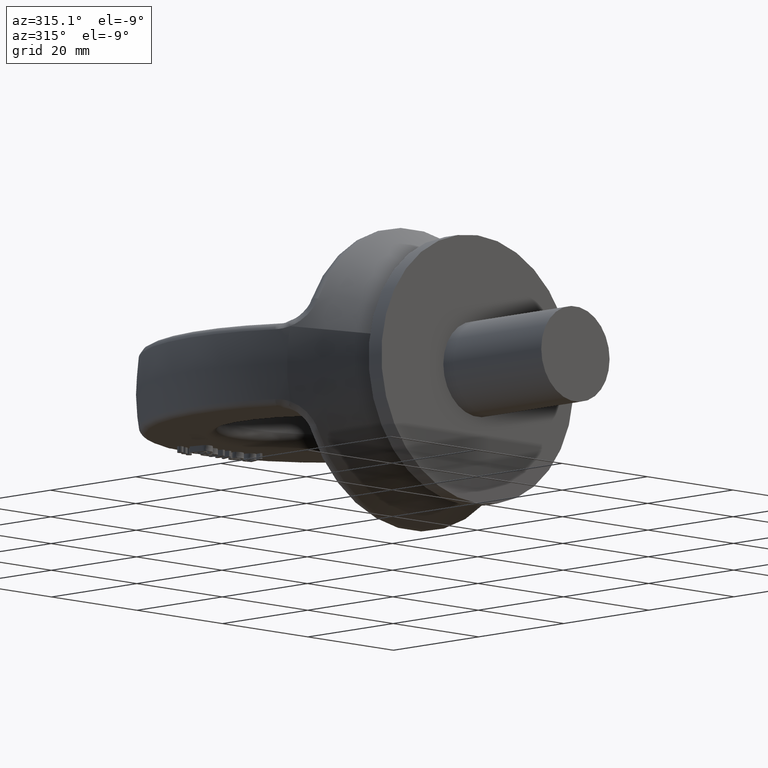
[diagram: clean part render]
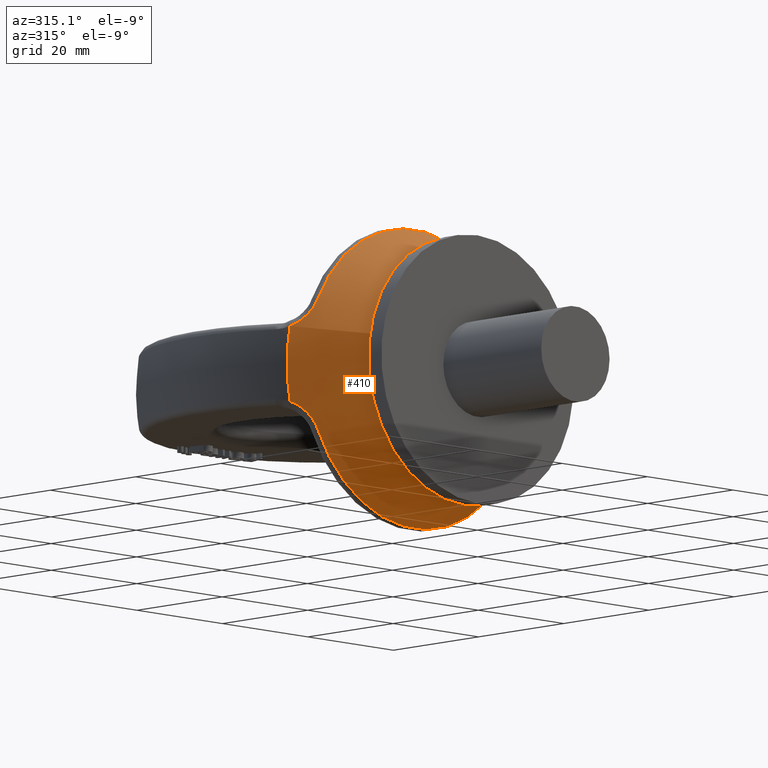
[diagram: same view with one face highlighted and labeled with its STEP entity id]
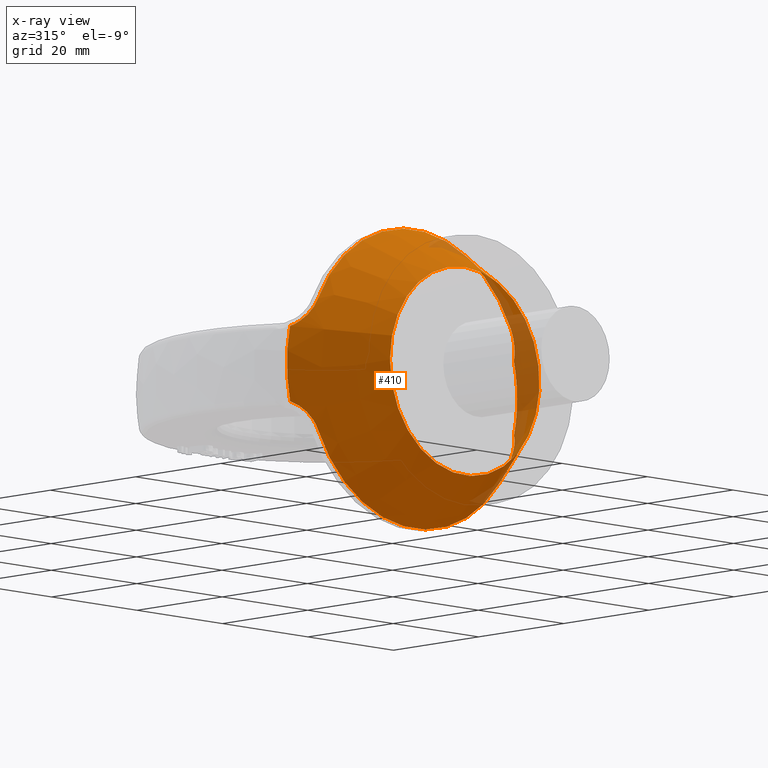
[diagram: x-ray of the same camera — body ghosted, the highlighted face saturated]
A machine part, auxiliary view. The second image highlights one B-rep face of the part: STEP entity #410.
The next image is the same camera in x-ray: the body ghosted, the highlighted face saturated — about 9% of this face is hidden behind the body in this view.
In plain terms, the highlighted conical surface has half-angle 32.654 deg.
Its self-contained STEP definition (entity closure, byte-faithful):
#245=CONICAL_SURFACE('',#3362,15.577455357143,32.6537070211299);
#410=ADVANCED_FACE('',(#752,#753),#245,.T.);
#694=CIRCLE('',#3357,17.5000000000001);
#695=CIRCLE('',#3358,26.9423040781809);
#696=CIRCLE('',#3359,25.0906008034205);
#697=CIRCLE('',#3360,26.9423040781809);
#698=CIRCLE('',#3361,25.0906008034205);
#752=FACE_BOUND('',#817,.T.);
#753=FACE_BOUND('',#818,.T.);
#817=EDGE_LOOP('',(#1540));
#818=EDGE_LOOP('',(#1541,#1542,#1543,#1544,#1545,#1546,#1547,#1548));
#1540=ORIENTED_EDGE('',*,*,#2724,.F.);
#1541=ORIENTED_EDGE('',*,*,#2725,.T.);
#1542=ORIENTED_EDGE('',*,*,#2726,.T.);
#1543=ORIENTED_EDGE('',*,*,#2727,.T.);
#1544=ORIENTED_EDGE('',*,*,#2728,.T.);
#1545=ORIENTED_EDGE('',*,*,#2729,.T.);
#1546=ORIENTED_EDGE('',*,*,#2730,.T.);
#1547=ORIENTED_EDGE('',*,*,#2731,.T.);
#1548=ORIENTED_EDGE('',*,*,#2732,.T.);
#2428=VERTEX_POINT('',#4450);
#2429=VERTEX_POINT('',#4455);
#2430=VERTEX_POINT('',#4456);
#2431=VERTEX_POINT('',#4458);
#2432=VERTEX_POINT('',#4463);
#2433=VERTEX_POINT('',#4465);
#2434=VERTEX_POINT('',#4470);
#2435=VERTEX_POINT('',#4472);
#2436=VERTEX_POINT('',#4477);
#2724=EDGE_CURVE('',#2428,#2428,#694,.T.);
#2725=EDGE_CURVE('',#2429,#2430,#3130,.T.);
#2726=EDGE_CURVE('',#2430,#2431,#695,.T.);
#2727=EDGE_CURVE('',#2431,#2432,#3131,.T.);
#2728=EDGE_CURVE('',#2432,#2433,#696,.T.);
#2729=EDGE_CURVE('',#2433,#2434,#3132,.T.);
#2730=EDGE_CURVE('',#2434,#2435,#697,.T.);
#2731=EDGE_CURVE('',#2435,#2436,#3133,.T.);
#2732=EDGE_CURVE('',#2436,#2429,#698,.T.);
#3130=B_SPLINE_CURVE_WITH_KNOTS('',3,(#4451,#4452,#4453,#4454),
 .UNSPECIFIED.,.F.,.F.,(4,4),(0.,1.),.UNSPECIFIED.);
#3131=B_SPLINE_CURVE_WITH_KNOTS('',3,(#4459,#4460,#4461,#4462),
 .UNSPECIFIED.,.F.,.F.,(4,4),(0.,1.),.UNSPECIFIED.);
#3132=B_SPLINE_CURVE_WITH_KNOTS('',3,(#4466,#4467,#4468,#4469),
 .UNSPECIFIED.,.F.,.F.,(4,4),(0.,1.),.UNSPECIFIED.);
#3133=B_SPLINE_CURVE_WITH_KNOTS('',3,(#4473,#4474,#4475,#4476),
 .UNSPECIFIED.,.F.,.F.,(4,4),(0.,1.),.UNSPECIFIED.);
#3357=AXIS2_PLACEMENT_3D('',#4449,#3584,#3585);
#3358=AXIS2_PLACEMENT_3D('',#4457,#3586,#3587);
#3359=AXIS2_PLACEMENT_3D('',#4464,#3588,#3589);
#3360=AXIS2_PLACEMENT_3D('',#4471,#3590,#3591);
#3361=AXIS2_PLACEMENT_3D('',#4478,#3592,#3593);
#3362=AXIS2_PLACEMENT_3D('',#4479,#3594,#3595);
#3584=DIRECTION('',(0.,-1.,0.));
#3585=DIRECTION('',(0.,0.,1.));
#3586=DIRECTION('',(-1.90154478884631E-15,-1.,0.));
#3587=DIRECTION('',(1.,-1.93159813386005E-15,0.));
#3588=DIRECTION('',(1.94269602349167E-16,-1.,0.));
#3589=DIRECTION('',(1.,2.07415137991473E-16,0.));
#3590=DIRECTION('',(-1.90154478884631E-15,-1.,0.));
#3591=DIRECTION('',(1.,-1.93159813386005E-15,0.));
#3592=DIRECTION('',(-1.94269602349167E-16,-1.,-4.55156335694492E-31));
#3593=DIRECTION('',(-1.,2.07415137991473E-16,-2.34291072916505E-15));
#3594=DIRECTION('',(1.90154478884631E-15,1.,0.));
#3595=DIRECTION('',(-1.,1.98729591827863E-15,0.));
#4449=CARTESIAN_POINT('',(-1.27403500852703E-13,3.,2.7030162057077E-14));
#4450=CARTESIAN_POINT('',(-1.27403500852703E-13,3.,17.5000000000001));
#4451=CARTESIAN_POINT('',(22.5422024542121,14.8446156737455,-11.0175930760726));
#4452=CARTESIAN_POINT('',(23.5597363624101,14.8446156737455,-8.93569958043786));
#4453=CARTESIAN_POINT('',(24.8676766635644,16.0212727582385,-7.12508739064537));
#4454=CARTESIAN_POINT('',(26.1935897104737,17.7340725427552,-6.30742476138493));
#4455=CARTESIAN_POINT('',(22.5422024542121,14.8446156737456,-11.0175930760726));
#4456=CARTESIAN_POINT('',(26.1935897104737,17.7340725427552,-6.30742476138493));
#4457=CARTESIAN_POINT('',(-9.36813676240044E-14,17.7340725427552,0.));
#4458=CARTESIAN_POINT('',(26.1935897104735,17.7340725427552,6.30742476138505));
#4459=CARTESIAN_POINT('',(26.1935897104735,17.7340725427552,6.30742476138504));
#4460=CARTESIAN_POINT('',(24.8681321443417,16.0218611432607,7.12480650525034));
#4461=CARTESIAN_POINT('',(23.5596402853768,14.8446156737455,8.935896155853));
#4462=CARTESIAN_POINT('',(22.5422024542119,14.8446156737455,11.0175930760726));
#4463=CARTESIAN_POINT('',(22.5422024542119,14.8446156737455,11.0175930760726));
#4464=CARTESIAN_POINT('',(-9.91757992758659E-14,14.8446156737455,0.));
#4465=CARTESIAN_POINT('',(-22.5422024542121,14.8446156737456,11.0175930760727));
#4466=CARTESIAN_POINT('',(-22.542202454212,14.8446156737455,11.0175930760726));
#4467=CARTESIAN_POINT('',(-23.5597363624101,14.8446156737455,8.93569958043791));
#4468=CARTESIAN_POINT('',(-24.8676766635644,16.0212727582385,7.12508739064543));
#4469=CARTESIAN_POINT('',(-26.1935897104737,17.7340725427552,6.307424761385));
#4470=CARTESIAN_POINT('',(-26.1935897104737,17.7340725427552,6.30742476138499));
#4471=CARTESIAN_POINT('',(-9.36813676240044E-14,17.7340725427552,0.));
#4472=CARTESIAN_POINT('',(-26.1935897104735,17.7340725427552,-6.30742476138511));
#4473=CARTESIAN_POINT('',(-26.1935897104735,17.7340725427552,-6.30742476138511));
#4474=CARTESIAN_POINT('',(-24.8681321443417,16.0218611432607,-7.12480650525039));
#4475=CARTESIAN_POINT('',(-23.5596402853768,14.8446156737455,-8.93589615585305));
#4476=CARTESIAN_POINT('',(-22.5422024542119,14.8446156737455,-11.0175930760727));
#4477=CARTESIAN_POINT('',(-22.5422024542119,14.8446156737455,-11.0175930760727));
#4478=CARTESIAN_POINT('',(9.91757992758659E-14,14.8446156737455,2.32360044196946E-28));
#4479=CARTESIAN_POINT('',(-1.27403500852703E-13,2.77555756156289E-14,0.));